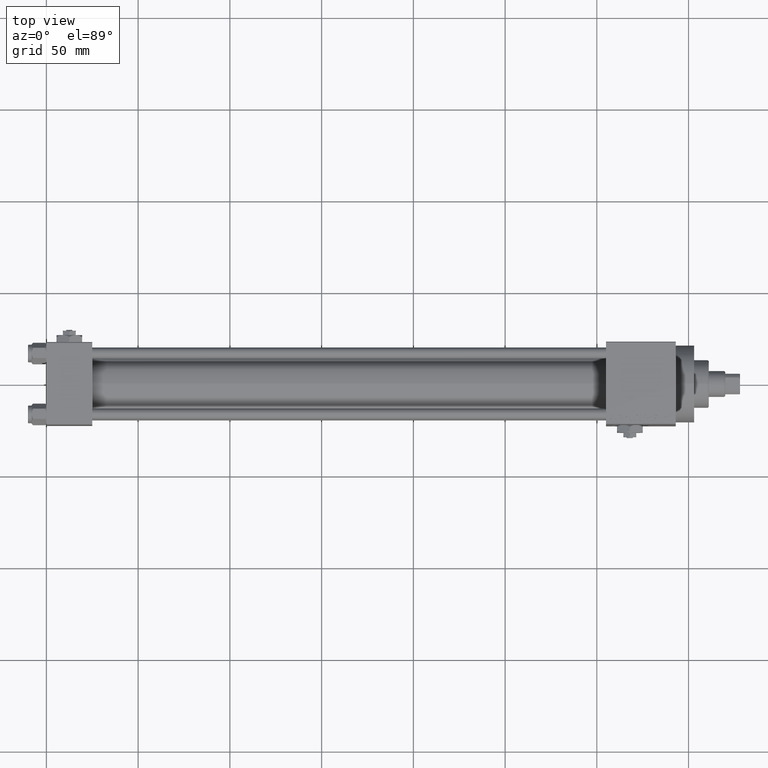
[diagram: clean part render]
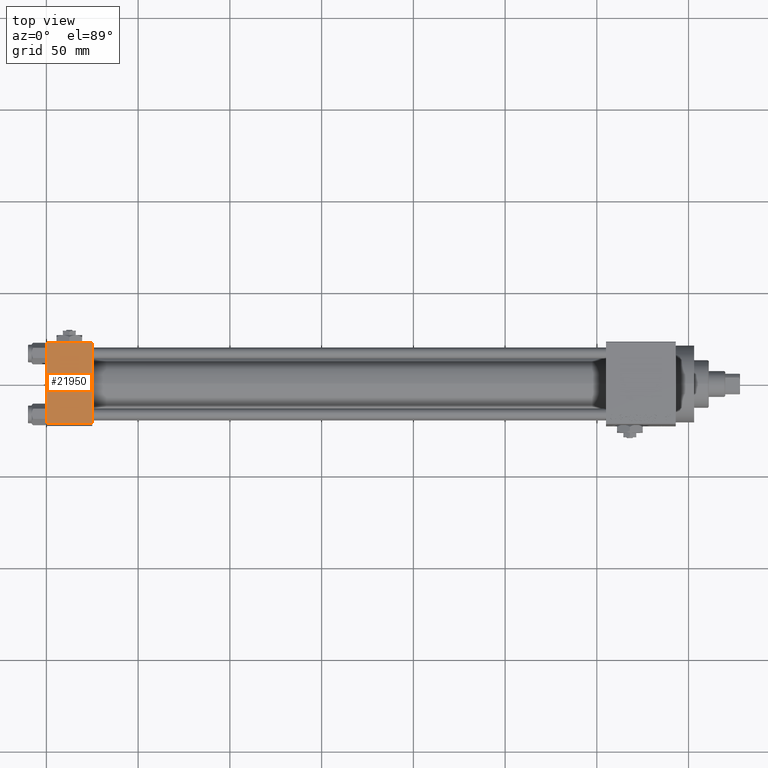
[diagram: same view with one face highlighted and labeled with its STEP entity id]
A machine part, top view. The second image highlights one B-rep face of the part: STEP entity #21950.
In plain terms, the highlighted planar face has unit normal (0, 0, -1).
Its self-contained STEP definition (entity closure, byte-faithful):
#414 = CARTESIAN_POINT ( 'NONE',  ( 0.000000000000000000, 22.50000000000000000, 22.50000000000000355 ) ) ;
#2020 = VECTOR ( 'NONE', #21811, 1000.000000000000000 ) ;
#2440 = LINE ( 'NONE', #21335, #2020 ) ;
#3437 = CARTESIAN_POINT ( 'NONE',  ( 25.00000000000000000, -21.99999999999997868, 22.50000000000000000 ) ) ;
#6254 = VERTEX_POINT ( 'NONE', #12442 ) ;
#11506 = EDGE_CURVE ( 'NONE', #17117, #36719, #16719, .T. ) ;
#11569 = ORIENTED_EDGE ( 'NONE', *, *, #23904, .T. ) ;
#12442 = CARTESIAN_POINT ( 'NONE',  ( 25.00000000000000000, 21.99999999999999289, 22.50000000000000355 ) ) ;
#13143 = VECTOR ( 'NONE', #26927, 1000.000000000000000 ) ;
#14092 = VERTEX_POINT ( 'NONE', #28804 ) ;
#15210 = AXIS2_PLACEMENT_3D ( 'NONE', #15451, #44463, #22106 ) ;
#15451 = CARTESIAN_POINT ( 'NONE',  ( 25.00000000000000000, 22.50000000000000000, 22.50000000000000355 ) ) ;
#15864 = VECTOR ( 'NONE', #35130, 1000.000000000000000 ) ;
#16071 = VECTOR ( 'NONE', #39031, 1000.000000000000000 ) ;
#16719 = LINE ( 'NONE', #43004, #15864 ) ;
#17117 = VERTEX_POINT ( 'NONE', #46306 ) ;
#21253 = ORIENTED_EDGE ( 'NONE', *, *, #11506, .T. ) ;
#21335 = CARTESIAN_POINT ( 'NONE',  ( 25.00000000000000000, 22.50000000000000000, 22.50000000000000355 ) ) ;
#21811 = DIRECTION ( 'NONE',  ( 0.000000000000000000, -1.000000000000000000, -7.709882115452476934E-17 ) ) ;
#21950 = ADVANCED_FACE ( 'NONE', ( #37570 ), #33401, .F. ) ;
#22106 = DIRECTION ( 'NONE',  ( 0.000000000000000000, 1.000000000000000000, 7.709882115452476934E-17 ) ) ;
#23168 = ORIENTED_EDGE ( 'NONE', *, *, #40674, .T. ) ;
#23904 = EDGE_CURVE ( 'NONE', #6254, #14092, #34857, .T. ) ;
#26927 = DIRECTION ( 'NONE',  ( 0.000000000000000000, -1.000000000000000000, -7.709882115452476934E-17 ) ) ;
#28804 = CARTESIAN_POINT ( 'NONE',  ( 0.000000000000000000, 21.99999999999999289, 22.50000000000000355 ) ) ;
#29303 = EDGE_CURVE ( 'NONE', #6254, #36719, #2440, .T. ) ;
#33401 = PLANE ( 'NONE',  #15210 ) ;
#34857 = LINE ( 'NONE', #46908, #16071 ) ;
#35130 = DIRECTION ( 'NONE',  ( 1.000000000000000000, 0.000000000000000000, 0.000000000000000000 ) ) ;
#36719 = VERTEX_POINT ( 'NONE', #3437 ) ;
#37570 = FACE_OUTER_BOUND ( 'NONE', #48432, .T. ) ;
#39031 = DIRECTION ( 'NONE',  ( -1.000000000000000000, 0.000000000000000000, 0.000000000000000000 ) ) ;
#39763 = ORIENTED_EDGE ( 'NONE', *, *, #29303, .F. ) ;
#40674 = EDGE_CURVE ( 'NONE', #14092, #17117, #41673, .T. ) ;
#41673 = LINE ( 'NONE', #414, #13143 ) ;
#43004 = CARTESIAN_POINT ( 'NONE',  ( 25.00000000000000000, -21.99999999999999289, 22.50000000000000000 ) ) ;
#44463 = DIRECTION ( 'NONE',  ( 0.000000000000000000, 7.709882115452476934E-17, -1.000000000000000000 ) ) ;
#46306 = CARTESIAN_POINT ( 'NONE',  ( 0.000000000000000000, -21.99999999999997868, 22.50000000000000000 ) ) ;
#46908 = CARTESIAN_POINT ( 'NONE',  ( 0.000000000000000000, 21.99999999999999289, 22.50000000000000355 ) ) ;
#48432 = EDGE_LOOP ( 'NONE', ( #23168, #21253, #39763, #11569 ) ) ;